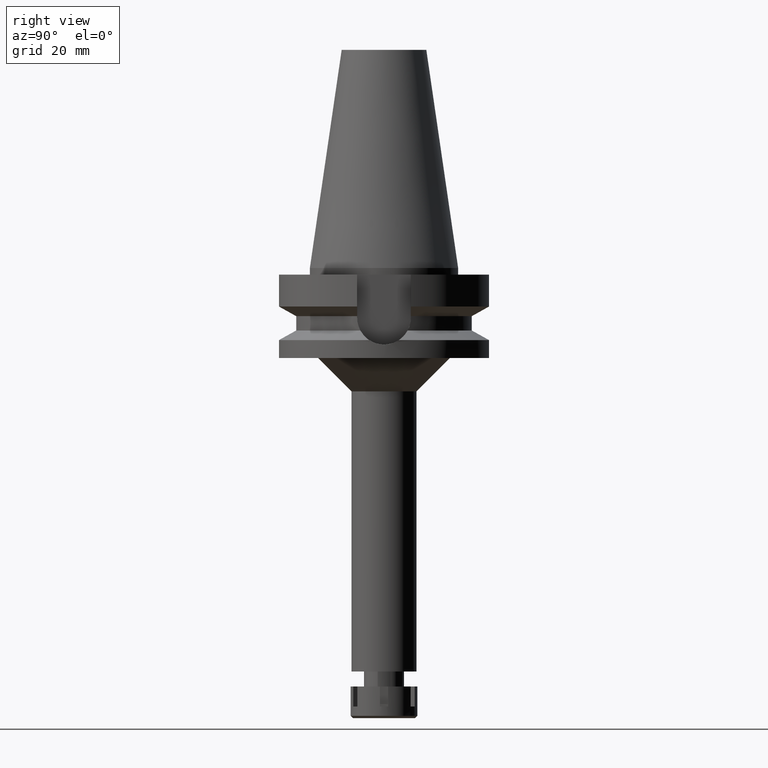
[diagram: clean part render]
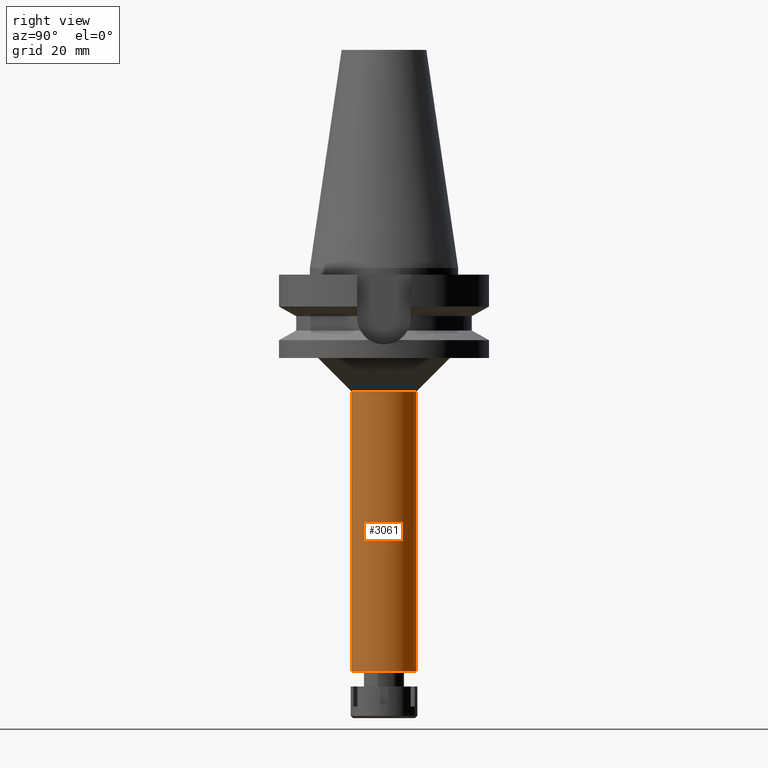
[diagram: same view with one face highlighted and labeled with its STEP entity id]
A machine part, right view. The second image highlights one B-rep face of the part: STEP entity #3061.
In plain terms, the highlighted cylindrical surface (edge-blend (fillet) strip) has radius 9.75 mm, axis along (0, 0, -1).
Its self-contained STEP definition (entity closure, byte-faithful):
#10 = LINE ( 'NONE', #3421, #1903 ) ;
#58 = VERTEX_POINT ( 'NONE', #3409 ) ;
#106 = DIRECTION ( 'NONE',  ( 0.0000000000000000000, 0.0000000000000000000, 1.000000000000000000 ) ) ;
#171 = CARTESIAN_POINT ( 'NONE',  ( 0.0000000000000000000, -9.750000000000000000, -37.00000000000000000 ) ) ;
#183 = EDGE_CURVE ( 'NONE', #58, #3503, #2877, .T. ) ;
#289 = DIRECTION ( 'NONE',  ( 0.0000000000000000000, 0.0000000000000000000, -1.000000000000000000 ) ) ;
#329 = DIRECTION ( 'NONE',  ( 0.0000000000000000000, 1.000000000000000000, 0.0000000000000000000 ) ) ;
#387 = CARTESIAN_POINT ( 'NONE',  ( 0.0000000000000000000, 9.750000000000000000, -37.00000000000000000 ) ) ;
#497 = FACE_OUTER_BOUND ( 'NONE', #3148, .T. ) ;
#546 = EDGE_CURVE ( 'NONE', #3191, #3503, #10, .T. ) ;
#902 = DIRECTION ( 'NONE',  ( 0.0000000000000000000, 0.0000000000000000000, -1.000000000000000000 ) ) ;
#1230 = VERTEX_POINT ( 'NONE', #1525 ) ;
#1245 = CARTESIAN_POINT ( 'NONE',  ( 0.0000000000000000000, 2.145213798065999842E-14, 75.17000000000000171 ) ) ;
#1525 = CARTESIAN_POINT ( 'NONE',  ( 0.0000000000000000000, -9.750000000000000000, -37.00000000000000000 ) ) ;
#1627 = CYLINDRICAL_SURFACE ( 'NONE', #1758, 9.750000000000000000 ) ;
#1644 = VECTOR ( 'NONE', #2174, 1000.000000000000000 ) ;
#1646 = ORIENTED_EDGE ( 'NONE', *, *, #183, .T. ) ;
#1758 = AXIS2_PLACEMENT_3D ( 'NONE', #1245, #902, #2584 ) ;
#1903 = VECTOR ( 'NONE', #289, 1000.000000000000000 ) ;
#1952 = EDGE_CURVE ( 'NONE', #3191, #1230, #2192, .T. ) ;
#2174 = DIRECTION ( 'NONE',  ( 0.0000000000000000000, 0.0000000000000000000, -1.000000000000000000 ) ) ;
#2192 = CIRCLE ( 'NONE', #3300, 9.750000000000000000 ) ;
#2453 = ORIENTED_EDGE ( 'NONE', *, *, #546, .F. ) ;
#2458 = ORIENTED_EDGE ( 'NONE', *, *, #1952, .T. ) ;
#2584 = DIRECTION ( 'NONE',  ( 0.0000000000000000000, -1.000000000000000000, 0.0000000000000000000 ) ) ;
#2635 = CARTESIAN_POINT ( 'NONE',  ( 0.0000000000000000000, 9.750000000000000000, -121.0000000000000000 ) ) ;
#2727 = DIRECTION ( 'NONE',  ( 0.0000000000000000000, -1.000000000000000000, 0.0000000000000000000 ) ) ;
#2739 = EDGE_CURVE ( 'NONE', #1230, #58, #3563, .T. ) ;
#2876 = DIRECTION ( 'NONE',  ( 0.0000000000000000000, 0.0000000000000000000, -1.000000000000000000 ) ) ;
#2877 = CIRCLE ( 'NONE', #3449, 9.750000000000000000 ) ;
#2915 = CARTESIAN_POINT ( 'NONE',  ( 0.0000000000000000000, 0.0000000000000000000, -37.00000000000000000 ) ) ;
#2966 = CARTESIAN_POINT ( 'NONE',  ( 0.0000000000000000000, 2.145213798065999842E-14, -121.0000000000000000 ) ) ;
#3061 = ADVANCED_FACE ( 'NONE', ( #497 ), #1627, .T. ) ;
#3148 = EDGE_LOOP ( 'NONE', ( #2458, #3527, #1646, #2453 ) ) ;
#3191 = VERTEX_POINT ( 'NONE', #387 ) ;
#3300 = AXIS2_PLACEMENT_3D ( 'NONE', #2915, #2876, #329 ) ;
#3409 = CARTESIAN_POINT ( 'NONE',  ( 0.0000000000000000000, -9.750000000000000000, -121.0000000000000000 ) ) ;
#3421 = CARTESIAN_POINT ( 'NONE',  ( 0.0000000000000000000, 9.750000000000000000, -37.00000000000000000 ) ) ;
#3449 = AXIS2_PLACEMENT_3D ( 'NONE', #2966, #106, #2727 ) ;
#3503 = VERTEX_POINT ( 'NONE', #2635 ) ;
#3527 = ORIENTED_EDGE ( 'NONE', *, *, #2739, .T. ) ;
#3563 = LINE ( 'NONE', #171, #1644 ) ;